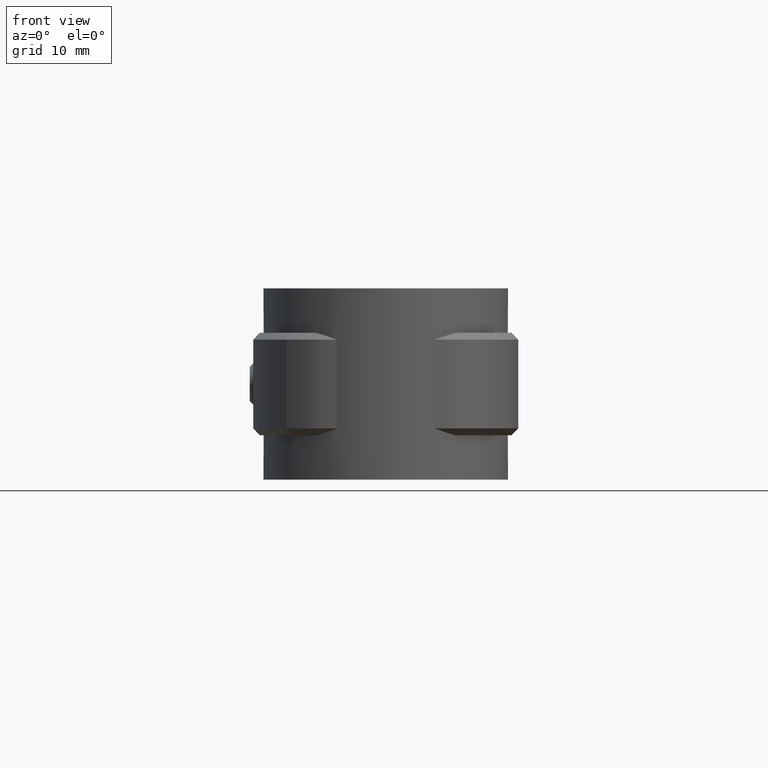
[diagram: clean part render]
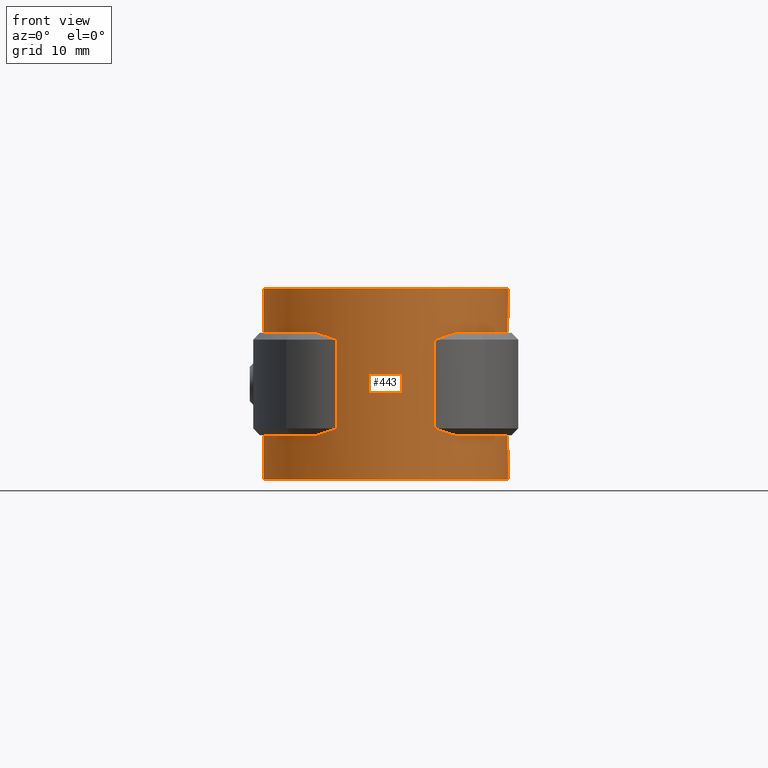
[diagram: same view with one face highlighted and labeled with its STEP entity id]
A machine part, front view. The second image highlights one B-rep face of the part: STEP entity #443.
In plain terms, the highlighted cylindrical surface (partial cylindrical patch) has radius 17.935 mm, axis along (0, 0, -1).
Its self-contained STEP definition (entity closure, byte-faithful):
#443 = ADVANCED_FACE( '', ( #857 ), #858, .T. );
#857 = FACE_OUTER_BOUND( '', #1890, .T. );
#858 = CYLINDRICAL_SURFACE( '', #1891, 17.9350000000000 );
#1890 = EDGE_LOOP( '', ( #3946, #3947, #3948, #3949, #3950, #3951, #3952, #3953, #3954, #3955, #3956, #3957, #3958, #3959, #3960, #3961 ) );
#1891 = AXIS2_PLACEMENT_3D( '', #3962, #3963, #3964 );
#3946 = ORIENTED_EDGE( '', *, *, #6251, .F. );
#3947 = ORIENTED_EDGE( '', *, *, #6252, .T. );
#3948 = ORIENTED_EDGE( '', *, *, #6253, .T. );
#3949 = ORIENTED_EDGE( '', *, *, #6254, .T. );
#3950 = ORIENTED_EDGE( '', *, *, #6255, .T. );
#3951 = ORIENTED_EDGE( '', *, *, #6256, .T. );
#3952 = ORIENTED_EDGE( '', *, *, #6257, .T. );
#3953 = ORIENTED_EDGE( '', *, *, #6119, .F. );
#3954 = ORIENTED_EDGE( '', *, *, #6258, .T. );
#3955 = ORIENTED_EDGE( '', *, *, #6259, .T. );
#3956 = ORIENTED_EDGE( '', *, *, #6260, .T. );
#3957 = ORIENTED_EDGE( '', *, *, #6261, .T. );
#3958 = ORIENTED_EDGE( '', *, *, #6262, .F. );
#3959 = ORIENTED_EDGE( '', *, *, #6122, .F. );
#3960 = ORIENTED_EDGE( '', *, *, #6263, .F. );
#3961 = ORIENTED_EDGE( '', *, *, #6264, .T. );
#3962 = CARTESIAN_POINT( '', ( 0.000000000000000, 0.000000000000000, -26.5000000000000 ) );
#3963 = DIRECTION( '', ( 0.000000000000000, 0.000000000000000, -1.00000000000000 ) );
#3964 = DIRECTION( '', ( 0.000000000000000, -1.00000000000000, 0.000000000000000 ) );
#6119 = EDGE_CURVE( '', #7132, #7134, #7135, .T. );
#6122 = EDGE_CURVE( '', #7137, #7124, #7139, .T. );
#6251 = EDGE_CURVE( '', #7356, #7357, #7358, .T. );
#6252 = EDGE_CURVE( '', #7356, #7359, #7360, .T. );
#6253 = EDGE_CURVE( '', #7359, #7361, #7362, .T. );
#6254 = EDGE_CURVE( '', #7361, #7363, #7364, .T. );
#6255 = EDGE_CURVE( '', #7363, #7365, #7366, .T. );
#6256 = EDGE_CURVE( '', #7365, #7367, #7368, .T. );
#6257 = EDGE_CURVE( '', #7367, #7134, #7369, .T. );
#6258 = EDGE_CURVE( '', #7132, #7370, #7371, .T. );
#6259 = EDGE_CURVE( '', #7370, #7372, #7373, .T. );
#6260 = EDGE_CURVE( '', #7372, #7374, #7375, .F. );
#6261 = EDGE_CURVE( '', #7374, #7376, #7377, .T. );
#6262 = EDGE_CURVE( '', #7124, #7376, #7378, .T. );
#6263 = EDGE_CURVE( '', #7379, #7137, #7380, .T. );
#6264 = EDGE_CURVE( '', #7379, #7357, #7381, .T. );
#7124 = VERTEX_POINT( '', #9370 );
#7132 = VERTEX_POINT( '', #9386 );
#7134 = VERTEX_POINT( '', #9389 );
#7135 = LINE( '', #9390, #9391 );
#7137 = VERTEX_POINT( '', #9394 );
#7139 = LINE( '', #9397, #9398 );
#7356 = VERTEX_POINT( '', #10339 );
#7357 = VERTEX_POINT( '', #10340 );
#7358 = CIRCLE( '', #10341, 17.9350000000000 );
#7359 = VERTEX_POINT( '', #10342 );
#7360 = B_SPLINE_CURVE_WITH_KNOTS( '', 3, ( #10343, #10344, #10345, #10346 ), .UNSPECIFIED., .F., .F., ( 4, 4 ), ( 0.000000000000000, 0.00357650561878171 ), .UNSPECIFIED. );
#7361 = VERTEX_POINT( '', #10347 );
#7362 = LINE( '', #10348, #10349 );
#7363 = VERTEX_POINT( '', #10350 );
#7364 = B_SPLINE_CURVE_WITH_KNOTS( '', 3, ( #10351, #10352, #10353, #10354 ), .UNSPECIFIED., .F., .F., ( 4, 4 ), ( 8.67361737988404E-019, 0.00357650561878171 ), .UNSPECIFIED. );
#7365 = VERTEX_POINT( '', #10355 );
#7366 = CIRCLE( '', #10356, 17.9350000000000 );
#7367 = VERTEX_POINT( '', #10357 );
#7368 = LINE( '', #10358, #10359 );
#7369 = CIRCLE( '', #10360, 17.9350000000000 );
#7370 = VERTEX_POINT( '', #10361 );
#7371 = CIRCLE( '', #10362, 17.9350000000000 );
#7372 = VERTEX_POINT( '', #10363 );
#7373 = B_SPLINE_CURVE_WITH_KNOTS( '', 3, ( #10364, #10365, #10366, #10367 ), .UNSPECIFIED., .F., .F., ( 4, 4 ), ( 0.000000000000000, 0.00357650561878171 ), .UNSPECIFIED. );
#7374 = VERTEX_POINT( '', #10368 );
#7375 = LINE( '', #10369, #10370 );
#7376 = VERTEX_POINT( '', #10371 );
#7377 = B_SPLINE_CURVE_WITH_KNOTS( '', 3, ( #10372, #10373, #10374, #10375 ), .UNSPECIFIED., .F., .F., ( 4, 4 ), ( 8.67361737988403E-019, 0.00357650561878171 ), .UNSPECIFIED. );
#7378 = CIRCLE( '', #10376, 17.9350000000000 );
#7379 = VERTEX_POINT( '', #10377 );
#7380 = CIRCLE( '', #10378, 17.9350000000000 );
#7381 = LINE( '', #10379, #10380 );
#9370 = CARTESIAN_POINT( '', ( -6.10000000000001, 16.8657708095420, -20.0000000000000 ) );
#9386 = CARTESIAN_POINT( '', ( -6.10000000000001, 16.8657708095420, -5.00000000000000 ) );
#9389 = CARTESIAN_POINT( '', ( -6.10000000000001, 16.8657708095420, 1.50000000000000 ) );
#9390 = CARTESIAN_POINT( '', ( -6.10000000000001, 16.8657708095420, -26.5000000000000 ) );
#9391 = VECTOR( '', #12114, 1000.00000000000 );
#9394 = CARTESIAN_POINT( '', ( -6.10000000000001, 16.8657708095420, -26.5000000000000 ) );
#9397 = CARTESIAN_POINT( '', ( -6.10000000000001, 16.8657708095420, -26.5000000000000 ) );
#9398 = VECTOR( '', #12117, 1000.00000000000 );
#10339 = CARTESIAN_POINT( '', ( 10.1735648996629, -14.7703352105613, -20.0000000000000 ) );
#10340 = CARTESIAN_POINT( '', ( 6.10000000000001, 16.8657708095420, -20.0000000000000 ) );
#10341 = AXIS2_PLACEMENT_3D( '', #12246, #12247, #12248 );
#10342 = CARTESIAN_POINT( '', ( 7.17213575351333, -16.4385125158323, -19.0000000000000 ) );
#10343 = CARTESIAN_POINT( '', ( 10.1735648996629, -14.7703352105613, -20.0000000000000 ) );
#10344 = CARTESIAN_POINT( '', ( 9.20888036943031, -15.4347941098424, -19.7400700415532 ) );
#10345 = CARTESIAN_POINT( '', ( 8.20887606351091, -15.9861819149169, -19.3975272540509 ) );
#10346 = CARTESIAN_POINT( '', ( 7.17213575351333, -16.4385125158323, -19.0000000000000 ) );
#10347 = CARTESIAN_POINT( '', ( 7.17213575351333, -16.4385125158323, -6.00000000000000 ) );
#10348 = CARTESIAN_POINT( '', ( 7.17213575351333, -16.4385125158323, -12.5000000000000 ) );
#10349 = VECTOR( '', #12249, 1000.00000000000 );
#10350 = CARTESIAN_POINT( '', ( 10.1735648996629, -14.7703352105613, -5.00000000000000 ) );
#10351 = CARTESIAN_POINT( '', ( 7.17213575351333, -16.4385125158323, -6.00000000000000 ) );
#10352 = CARTESIAN_POINT( '', ( 8.20887606351091, -15.9861819149169, -5.60247274594915 ) );
#10353 = CARTESIAN_POINT( '', ( 9.20888036943031, -15.4347941098424, -5.25992995844682 ) );
#10354 = CARTESIAN_POINT( '', ( 10.1735648996629, -14.7703352105613, -5.00000000000000 ) );
#10355 = CARTESIAN_POINT( '', ( 6.10000000000001, 16.8657708095420, -5.00000000000000 ) );
#10356 = AXIS2_PLACEMENT_3D( '', #12250, #12251, #12252 );
#10357 = CARTESIAN_POINT( '', ( 6.10000000000001, 16.8657708095420, 1.50000000000000 ) );
#10358 = CARTESIAN_POINT( '', ( 6.10000000000001, 16.8657708095420, -26.5000000000000 ) );
#10359 = VECTOR( '', #12253, 1000.00000000000 );
#10360 = AXIS2_PLACEMENT_3D( '', #12254, #12255, #12256 );
#10361 = CARTESIAN_POINT( '', ( -10.1735648996629, -14.7703352105613, -5.00000000000000 ) );
#10362 = AXIS2_PLACEMENT_3D( '', #12257, #12258, #12259 );
#10363 = CARTESIAN_POINT( '', ( -7.17213575351333, -16.4385125158323, -6.00000000000000 ) );
#10364 = CARTESIAN_POINT( '', ( -10.1735648996629, -14.7703352105613, -5.00000000000000 ) );
#10365 = CARTESIAN_POINT( '', ( -9.20888036943031, -15.4347941098424, -5.25992995844682 ) );
#10366 = CARTESIAN_POINT( '', ( -8.20887606351091, -15.9861819149169, -5.60247274594915 ) );
#10367 = CARTESIAN_POINT( '', ( -7.17213575351333, -16.4385125158323, -6.00000000000000 ) );
#10368 = CARTESIAN_POINT( '', ( -7.17213575351333, -16.4385125158323, -19.0000000000000 ) );
#10369 = CARTESIAN_POINT( '', ( -7.17213575351333, -16.4385125158323, -12.5000000000000 ) );
#10370 = VECTOR( '', #12260, 1000.00000000000 );
#10371 = CARTESIAN_POINT( '', ( -10.1735648996629, -14.7703352105613, -20.0000000000000 ) );
#10372 = CARTESIAN_POINT( '', ( -7.17213575351333, -16.4385125158323, -19.0000000000000 ) );
#10373 = CARTESIAN_POINT( '', ( -8.20887606351091, -15.9861819149169, -19.3975272540509 ) );
#10374 = CARTESIAN_POINT( '', ( -9.20888036943031, -15.4347941098424, -19.7400700415532 ) );
#10375 = CARTESIAN_POINT( '', ( -10.1735648996629, -14.7703352105613, -20.0000000000000 ) );
#10376 = AXIS2_PLACEMENT_3D( '', #12261, #12262, #12263 );
#10377 = CARTESIAN_POINT( '', ( 6.10000000000001, 16.8657708095420, -26.5000000000000 ) );
#10378 = AXIS2_PLACEMENT_3D( '', #12264, #12265, #12266 );
#10379 = CARTESIAN_POINT( '', ( 6.10000000000001, 16.8657708095420, -26.5000000000000 ) );
#10380 = VECTOR( '', #12267, 1000.00000000000 );
#12114 = DIRECTION( '', ( 0.000000000000000, 0.000000000000000, 1.00000000000000 ) );
#12117 = DIRECTION( '', ( 0.000000000000000, 0.000000000000000, 1.00000000000000 ) );
#12246 = CARTESIAN_POINT( '', ( 0.000000000000000, 0.000000000000000, -20.0000000000000 ) );
#12247 = DIRECTION( '', ( 0.000000000000000, 0.000000000000000, 1.00000000000000 ) );
#12248 = DIRECTION( '', ( 1.00000000000000, 0.000000000000000, 0.000000000000000 ) );
#12249 = DIRECTION( '', ( 0.000000000000000, 0.000000000000000, 1.00000000000000 ) );
#12250 = CARTESIAN_POINT( '', ( 0.000000000000000, 0.000000000000000, -5.00000000000000 ) );
#12251 = DIRECTION( '', ( 0.000000000000000, 0.000000000000000, 1.00000000000000 ) );
#12252 = DIRECTION( '', ( 1.00000000000000, 0.000000000000000, 0.000000000000000 ) );
#12253 = DIRECTION( '', ( 0.000000000000000, 0.000000000000000, 1.00000000000000 ) );
#12254 = CARTESIAN_POINT( '', ( 0.000000000000000, 0.000000000000000, 1.50000000000000 ) );
#12255 = DIRECTION( '', ( 0.000000000000000, 0.000000000000000, -1.00000000000000 ) );
#12256 = DIRECTION( '', ( 1.00000000000000, 0.000000000000000, 0.000000000000000 ) );
#12257 = CARTESIAN_POINT( '', ( 0.000000000000000, 0.000000000000000, -5.00000000000000 ) );
#12258 = DIRECTION( '', ( 0.000000000000000, 0.000000000000000, 1.00000000000000 ) );
#12259 = DIRECTION( '', ( 1.00000000000000, 0.000000000000000, 0.000000000000000 ) );
#12260 = DIRECTION( '', ( 0.000000000000000, 0.000000000000000, 1.00000000000000 ) );
#12261 = CARTESIAN_POINT( '', ( 0.000000000000000, 0.000000000000000, -20.0000000000000 ) );
#12262 = DIRECTION( '', ( 0.000000000000000, 0.000000000000000, 1.00000000000000 ) );
#12263 = DIRECTION( '', ( 1.00000000000000, 0.000000000000000, 0.000000000000000 ) );
#12264 = CARTESIAN_POINT( '', ( 0.000000000000000, 0.000000000000000, -26.5000000000000 ) );
#12265 = DIRECTION( '', ( 0.000000000000000, 0.000000000000000, -1.00000000000000 ) );
#12266 = DIRECTION( '', ( 1.00000000000000, 0.000000000000000, 0.000000000000000 ) );
#12267 = DIRECTION( '', ( 0.000000000000000, 0.000000000000000, 1.00000000000000 ) );